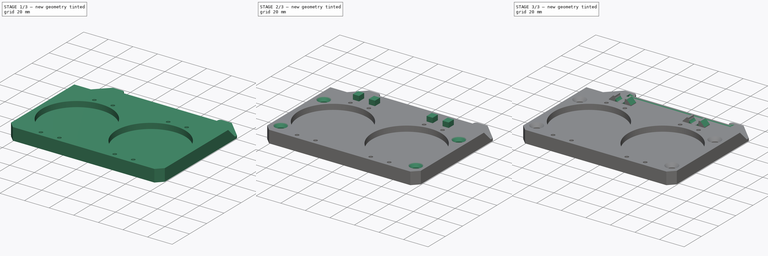
[diagram: build sequence overview — one tinted view per stage of 3, left to right]
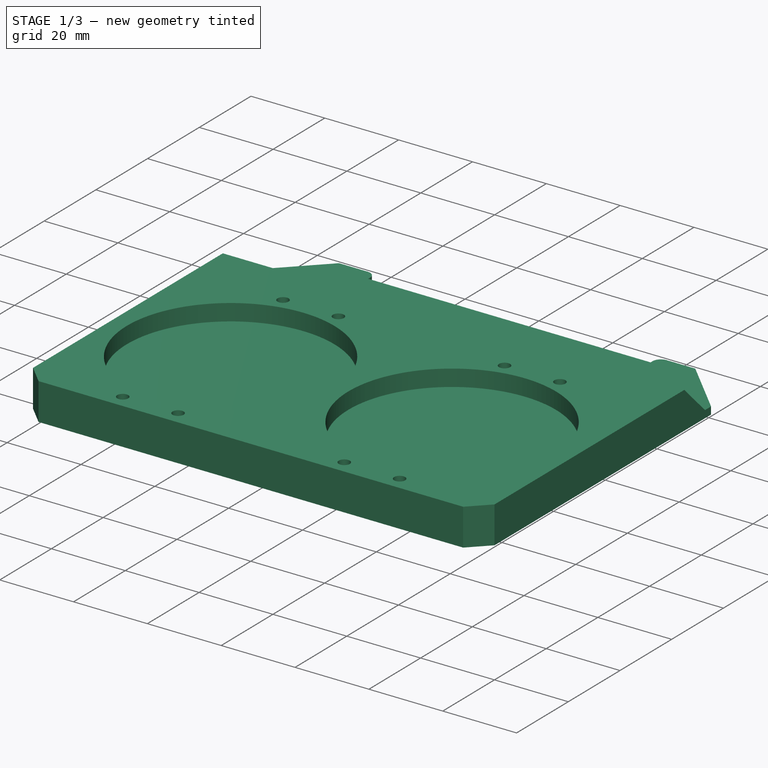
[diagram: stage 1 of 3 — iso view after this stage's code; geometry added in this stage tinted green]
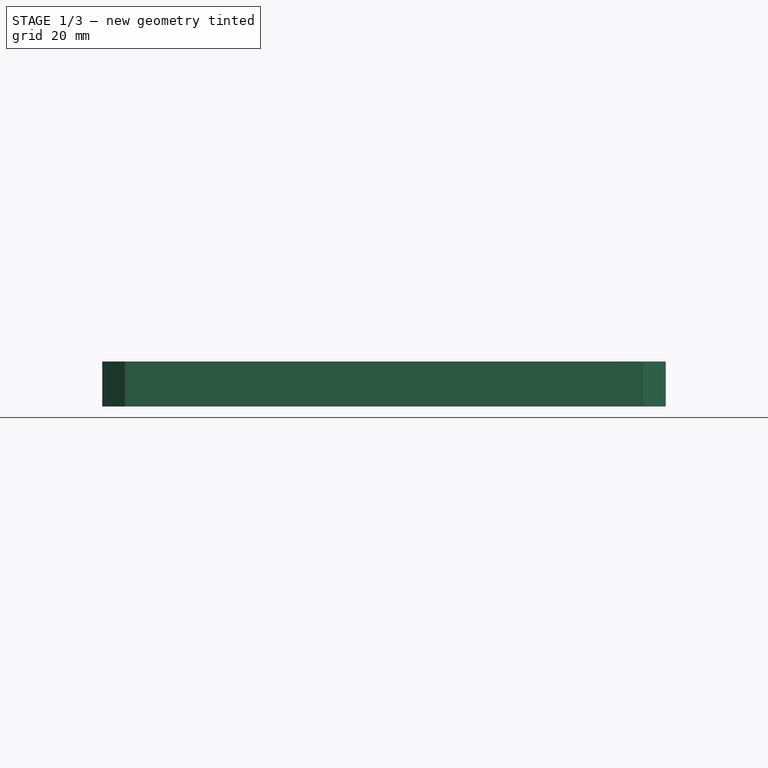
[diagram: stage 1 of 3 — front view after this stage's code; geometry added in this stage tinted green]
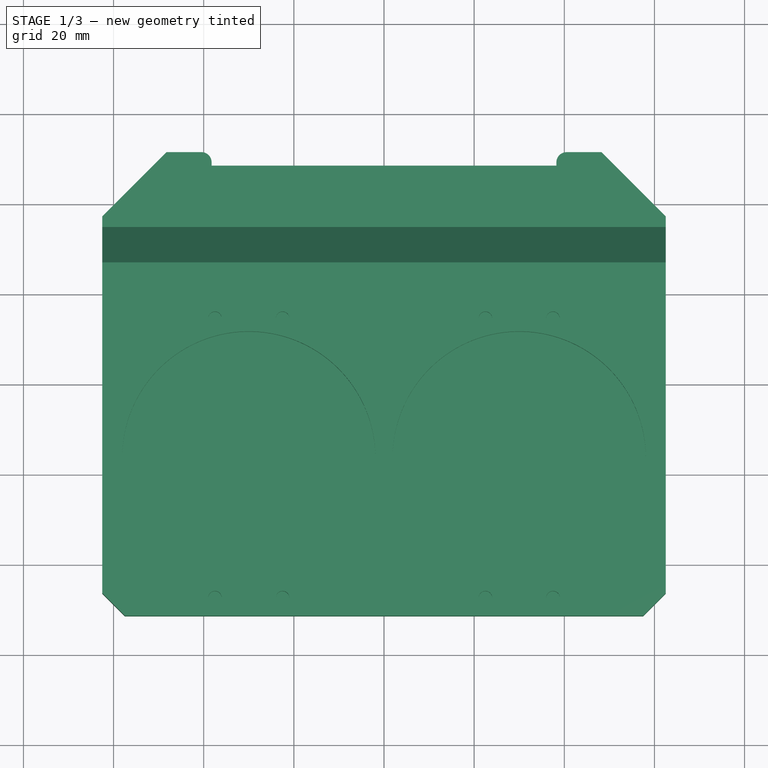
[diagram: stage 1 of 3 — top view after this stage's code; geometry added in this stage tinted green]
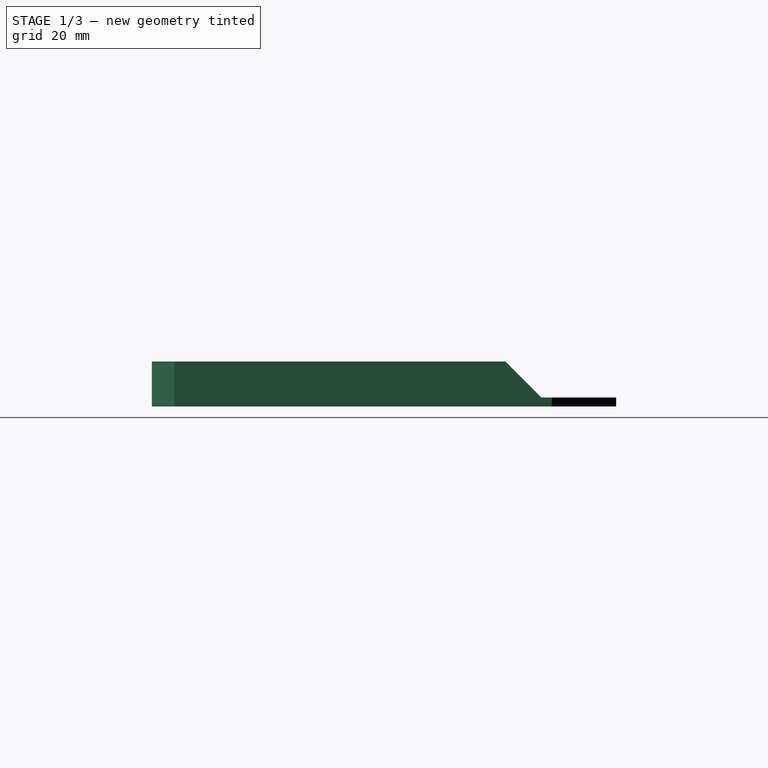
[diagram: stage 1 of 3 — right view after this stage's code; geometry added in this stage tinted green]
FCSTD DOCUMENT  (FreeCAD 0.19R24276 (Git))
Label: canvas_measurement_jig
License: All rights reserved
LicenseURL: http://en.wikipedia.org/wiki/All_rights_reserved
objects: Sketcher::SketchObject×6, PartDesign::Pocket×3, PartDesign::Pad×2, PartDesign::Hole×1, PartDesign::Chamfer×1, PartDesign::Fillet×1, PartDesign::Body×1
note: 23 computed .brp shape members not serialized (recipe doc carries the construction recipe); baked Part::Feature solids carry a one-line shape summary decoded from their .brp

FEATURE [Sketcher::SketchObject] Sketch
  FullyConstrained = true
  MapMode = 5
  Support = -> [XY_Plane]
  sketch-geometry (24):
    g0: LineSegment StartX=-48.25 StartY=-51.4 StartZ=0 EndX=48.25 EndY=-51.4 EndZ=0
    g1: LineSegment StartX=-48.25 StartY=-51.4 StartZ=0 EndX=0 EndY=0 EndZ=0
    g2: LineSegment StartX=0 StartY=0 StartZ=0 EndX=48.25 EndY=-51.4 EndZ=0
    g3: LineSegment StartX=-48.25 StartY=-48.4 StartZ=0 EndX=-40.5 EndY=-48.4 EndZ=0
    g4: LineSegment StartX=-38.25 StartY=-50.65 StartZ=0 EndX=-38.25 EndY=-51.4 EndZ=0
    g5: LineSegment StartX=-38.25 StartY=-51.4 StartZ=0 EndX=38.25 EndY=-51.4 EndZ=0
    g6: LineSegment StartX=38.25 StartY=-51.4 StartZ=0 EndX=38.25 EndY=-50.65 EndZ=0
    g7: LineSegment StartX=40.5 StartY=-48.4 StartZ=0 EndX=48.25 EndY=-48.4 EndZ=0
    g8: LineSegment StartX=-48.25 StartY=-48.4 StartZ=0 EndX=-48.25 EndY=-146.4 EndZ=0
    g9: LineSegment StartX=-48.25 StartY=-146.4 StartZ=0 EndX=48.25 EndY=-146.4 EndZ=0
    g10: LineSegment StartX=48.25 StartY=-146.4 StartZ=0 EndX=48.25 EndY=-48.4 EndZ=0
    g11: LineSegment StartX=-40.5 StartY=-48.4 StartZ=0 EndX=40.5 EndY=-48.4 EndZ=0
    g12: ArcOfCircle CenterX=-40.5 CenterY=-50.65 CenterZ=0 NormalX=0 NormalY=0 NormalZ=1 AngleXU=0 Radius=2.25 StartAngle=-9e-16 EndAngle=1.5708
    g13: ArcOfCircle CenterX=40.5 CenterY=-50.65 CenterZ=0 NormalX=0 NormalY=0 NormalZ=1 AngleXU=0 Radius=2.25 StartAngle=1.5708 EndAngle=3.14159
    g14: LineSegment StartX=48.25 StartY=-48.4 StartZ=0 EndX=62.5 EndY=-62.65 EndZ=0
    g15: LineSegment StartX=62.5 StartY=-62.65 StartZ=0 EndX=62.5 EndY=-146.4 EndZ=0
    g16: LineSegment StartX=62.5 StartY=-146.4 StartZ=0 EndX=-62.5 EndY=-146.4 EndZ=0
    g17: LineSegment StartX=-62.5 StartY=-146.4 StartZ=0 EndX=-62.5 EndY=-62.65 EndZ=0
    g18: LineSegment StartX=-62.5 StartY=-62.65 StartZ=0 EndX=-48.25 EndY=-48.4 EndZ=0
    g19: LineSegment StartX=-62.5 StartY=-62.65 StartZ=0 EndX=-62.5 EndY=-48.4 EndZ=0
    g20: LineSegment StartX=-62.5 StartY=-48.4 StartZ=0 EndX=-48.25 EndY=-48.4 EndZ=0
    g21: LineSegment StartX=-62.5 StartY=-146.4 StartZ=0 EndX=-57.5 EndY=-151.4 EndZ=0
    g22: LineSegment StartX=-57.5 StartY=-151.4 StartZ=0 EndX=57.5 EndY=-151.4 EndZ=0
    g23: LineSegment StartX=57.5 StartY=-151.4 StartZ=0 EndX=62.5 EndY=-146.4 EndZ=0
  constraints (65):
    c: Horizontal(g0)
    c: DistanceX(g0,g0) = 96.5
    c: Coincident(g0,g1)
    c: Coincident(g1,g-1)
    c: Coincident(g1,g2)
    c: Coincident(g2,g0)
    c: Equal(g2,g1)
    c: DistanceY(g0,g-1) = 51.4
    c: Horizontal(g3)
    c: PointOnObject(g4,g0)
    c: Vertical(g4)
    c: Coincident(g4,g5)
    c: PointOnObject(g5,g0)
    c: Coincident(g5,g6)
    c: Vertical(g6)
    c: Horizontal(g7)
    c: Equal(g7,g3)
    c: Coincident(g3,g8)
    c: Vertical(g8)
    c: Coincident(g8,g9)
    c: Horizontal(g9)
    c: Coincident(g9,g10)
    c: Coincident(g10,g7)
    c: Vertical(g10)
    c: PointOnObject(g0,g10)
    c: PointOnObject(g0,g8)
    c: DistanceY(g8,g4) = 95
    c: DistanceX(g5,g5) = 76.5
    c: Horizontal(g11)
    c: DistanceY(g0,g3) = 3
    c: Tangent(g4,g12) = 1.5708
    c: Tangent(g3,g12) = 1.5708
    c: Tangent(g6,g13) = 1.5708
    c: Tangent(g7,g13) = 1.5708
    c: Equal(g12,g13)
    c: Radius(g13) = 2.25
    c: Coincident(g11,g3)
    c: Coincident(g11,g7)
    c: Coincident(g7,g14)
    c: Coincident(g14,g15)
    c: Vertical(g15)
    c: Coincident(g15,g16)
    c: Horizontal(g16)
    c: Coincident(g16,g17)
    c: Vertical(g17)
    c: Coincident(g18,g17)
    c: Coincident(g18,g3)
    c: PointOnObject(g8,g16)
    c: Equal(g17,g15)
    c: Equal(g14,g18)
    c: Coincident(g17,g19)
    c: Vertical(g19)
    c: Coincident(g19,g20)
    c: Coincident(g20,g3)
    c: Horizontal(g20)
    c: Equal(g20,g19)
    c: DistanceX(g16,g16) = 125
    c: Coincident(g17,g21)
    c: Coincident(g21,g22)
    c: Horizontal(g22)
    c: Coincident(g22,g23)
    c: Coincident(g23,g15)
    c: Parallel(g23,g18)
    c: Parallel(g21,g14)
    c: DistanceY(g21,g0) = 100
FEATURE [PartDesign::Pad] Pad
  Direction = (1,1,1)
  Length = 10
  Length2 = 100
  Profile = -> Sketch
  Type = 0
FEATURE [Sketcher::SketchObject] Sketch001
  AttachmentOffset = pos=(0,0,10) rot=(0,0,1;0rad)
  FullyConstrained = true
  MapMode = 5
  Placement = pos=(0,0,10) rot=(0,0,1;0rad)
  Support = -> [XY_Plane]
  sketch-geometry (28):
    g0: Circle CenterX=-30 CenterY=-116.4 CenterZ=0 NormalX=0 NormalY=0 NormalZ=1 AngleXU=0 Radius=28.1
    g1: Circle CenterX=30 CenterY=-116.4 CenterZ=0 NormalX=0 NormalY=0 NormalZ=1 AngleXU=0 Radius=28.1
    g2: LineSegment StartX=-30 StartY=-116.4 StartZ=0 EndX=30 EndY=-116.4 EndZ=0
    g3: LineSegment StartX=-30 StartY=-116.4 StartZ=0 EndX=0 EndY=0 EndZ=0
    g4: LineSegment StartX=0 StartY=0 StartZ=0 EndX=30 EndY=-116.4 EndZ=0
    g5: LineSegment StartX=0 StartY=0 StartZ=0 EndX=0 EndY=-51.4 EndZ=0
    g6: Circle CenterX=-37.5 CenterY=-85.4 CenterZ=0 NormalX=0 NormalY=0 NormalZ=1 AngleXU=0 Radius=1.5
    g7: Circle CenterX=-22.5 CenterY=-85.4 CenterZ=0 NormalX=0 NormalY=0 NormalZ=1 AngleXU=0 Radius=1.5
    g8: Circle CenterX=22.5 CenterY=-85.4 CenterZ=0 NormalX=0 NormalY=0 NormalZ=1 AngleXU=0 Radius=1.5
    g9: Circle CenterX=37.5 CenterY=-85.4 CenterZ=0 NormalX=0 NormalY=0 NormalZ=1 AngleXU=0 Radius=1.5
    g10: Circle CenterX=-37.5 CenterY=-147.4 CenterZ=0 NormalX=0 NormalY=0 NormalZ=1 AngleXU=0 Radius=1.5
    g11: Circle CenterX=-22.5 CenterY=-147.4 CenterZ=0 NormalX=0 NormalY=0 NormalZ=1 AngleXU=0 Radius=1.5
    g12: Circle CenterX=22.5 CenterY=-147.4 CenterZ=0 NormalX=0 NormalY=0 NormalZ=1 AngleXU=0 Radius=1.5
    g13: Circle CenterX=37.5 CenterY=-147.4 CenterZ=0 NormalX=0 NormalY=0 NormalZ=1 AngleXU=0 Radius=1.5
    g14: LineSegment StartX=22.5 StartY=-85.4 StartZ=0 EndX=37.5 EndY=-85.4 EndZ=0
    g15: LineSegment StartX=37.5 StartY=-85.4 StartZ=0 EndX=37.5 EndY=-147.4 EndZ=0
    g16: LineSegment StartX=37.5 StartY=-147.4 StartZ=0 EndX=22.5 EndY=-147.4 EndZ=0
    g17: LineSegment StartX=22.5 StartY=-147.4 StartZ=0 EndX=22.5 EndY=-85.4 EndZ=0
    g18: LineSegment StartX=-37.5 StartY=-85.4 StartZ=0 EndX=-22.5 EndY=-85.4 EndZ=0
    g19: LineSegment StartX=-22.5 StartY=-85.4 StartZ=0 EndX=-22.5 EndY=-147.4 EndZ=0
    g20: LineSegment StartX=-22.5 StartY=-147.4 StartZ=0 EndX=-37.5 EndY=-147.4 EndZ=0
    g21: LineSegment StartX=-37.5 StartY=-147.4 StartZ=0 EndX=-37.5 EndY=-85.4 EndZ=0
    g22: LineSegment StartX=-37.5 StartY=-85.4 StartZ=0 EndX=-30 EndY=-116.4 EndZ=0
    g23: LineSegment StartX=-30 StartY=-116.4 StartZ=0 EndX=-22.5 EndY=-85.4 EndZ=0
    g24: LineSegment StartX=22.5 StartY=-85.4 StartZ=0 EndX=30 EndY=-116.4 EndZ=0
    g25: LineSegment StartX=30 StartY=-116.4 StartZ=0 EndX=37.5 EndY=-85.4 EndZ=0
    g26: LineSegment StartX=30 StartY=-116.4 StartZ=0 EndX=37.5 EndY=-147.4 EndZ=0
    g27: LineSegment StartX=-30 StartY=-116.4 StartZ=0 EndX=-37.5 EndY=-147.4 EndZ=0
  constraints (67):
    c: Diameter(g0) = 56.2
    c: Equal(g0,g1)
    c: Coincident(g2,g0)
    c: Coincident(g2,g1)
    c: Horizontal(g2)
    c: Coincident(g3,g0)
    c: Coincident(g3,g-1)
    c: Coincident(g3,g4)
    c: Coincident(g4,g1)
    c: Equal(g4,g3)
    c: Coincident(g5,g-1)
    c: Vertical(g5)
    c: DistanceY(g0,g5) = 65
    c: DistanceY(g5,g5) = 51.4
    c: DistanceX(g2,g2) = 60
    c: Diameter(g12) = 3
    c: Equal(g12,g13)
    c: Equal(g12,g9)
    c: Equal(g12,g8)
    c: Equal(g12,g7)
    c: Equal(g12,g6)
    c: Equal(g12,g10)
    c: Equal(g12,g11)
    c: Coincident(g14,g15)
    c: Coincident(g15,g16)
    c: Coincident(g16,g17)
    c: Coincident(g17,g14)
    c: Horizontal(g14)
    c: Horizontal(g16)
    c: Vertical(g15)
    c: Vertical(g17)
    c: Coincident(g14,g8)
    c: Coincident(g15,g13)
    c: Coincident(g18,g19)
    c: Coincident(g19,g20)
    c: Coincident(g20,g21)
    c: Coincident(g21,g18)
    c: Horizontal(g18)
    c: Horizontal(g20)
    c: Vertical(g19)
    c: Vertical(g21)
    c: Coincident(g18,g6)
    c: Coincident(g19,g11)
    c: Coincident(g7,g18)
    c: Coincident(g10,g20)
    c: Coincident(g9,g14)
    c: Coincident(g12,g16)
    c: Coincident(g22,g6)
    c: Coincident(g22,g0)
    c: Coincident(g22,g23)
    c: Coincident(g23,g7)
    c: Coincident(g24,g8)
    c: Coincident(g24,g1)
    c: Coincident(g24,g25)
    c: Coincident(g25,g9)
    c: Coincident(g26,g1)
    c: Coincident(g26,g13)
    c: Coincident(g27,g0)
    c: Coincident(g27,g10)
    c: Equal(g27,g22)
    c: Equal(g22,g23)
    c: Equal(g23,g24)
    c: Equal(g24,g25)
    c: Equal(g25,g26)
    c: DistanceX(g18,g18) = 15
    c: DistanceY(g21,g21) = 62
    c: Equal(g17,g19)
FEATURE [PartDesign::Pocket] Pocket
  BaseFeature = -> Pad
  Length = 4.5
  Length2 = 100
  Profile = -> Sketch001
  Type = 0
FEATURE [Sketcher::SketchObject] Sketch002
  FullyConstrained = true
  MapMode = 5
  Placement = pos=(0,0,0) rot=(0.57735,0.57735,0.57735;2.0944rad)
  Support = -> [YZ_Plane]
  sketch-geometry (4):
    g0: LineSegment StartX=0 StartY=2 StartZ=0 EndX=-65 EndY=2 EndZ=0
    g1: LineSegment StartX=-65 StartY=2 StartZ=0 EndX=-85 EndY=22 EndZ=0
    g2: LineSegment StartX=-85 StartY=22 StartZ=0 EndX=0 EndY=22 EndZ=0
    g3: LineSegment StartX=0 StartY=22 StartZ=0 EndX=0 EndY=2 EndZ=0
  constraints (12):
    c: Horizontal(g0)
    c: Coincident(g0,g1)
    c: Coincident(g1,g2)
    c: Horizontal(g2)
    c: Coincident(g2,g3)
    c: Vertical(g3)
    c: Coincident(g3,g0)
    c: Angle(g1,g2) = 0.785398
    c: DistanceY(g-1,g0) = 2
    c: PointOnObject(g0,g-2)
    c: DistanceX(g0,g0) = 65
    c: DistanceY(g3,g3) = 20
FEATURE [PartDesign::Pocket] Pocket001
  BaseFeature = -> Pocket
  Length = 5
  Length2 = 100
  Midplane = true
  Profile = -> Sketch002
  Type = 1
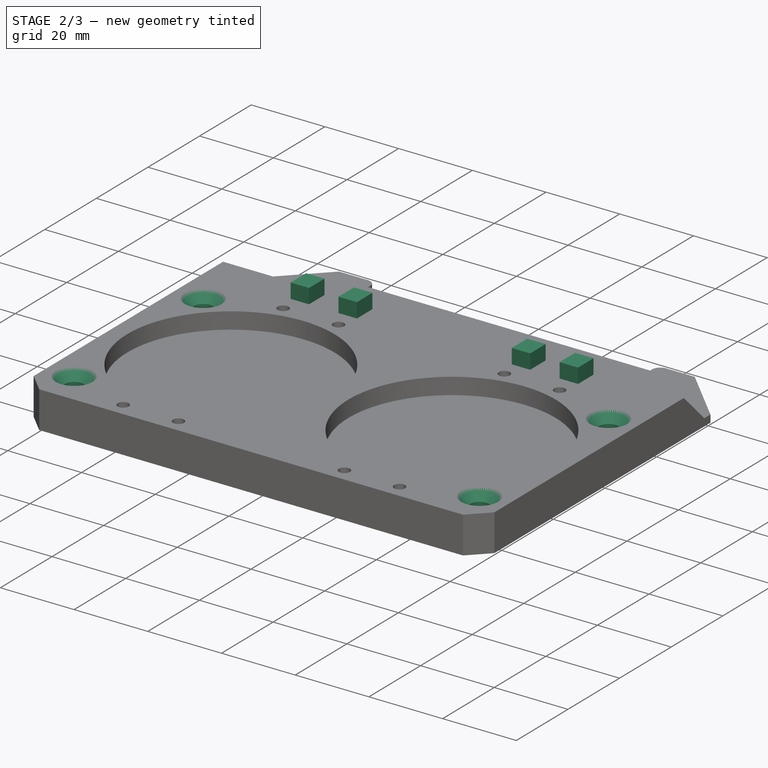
[diagram: stage 2 of 3 — iso view after this stage's code; geometry added in this stage tinted green]
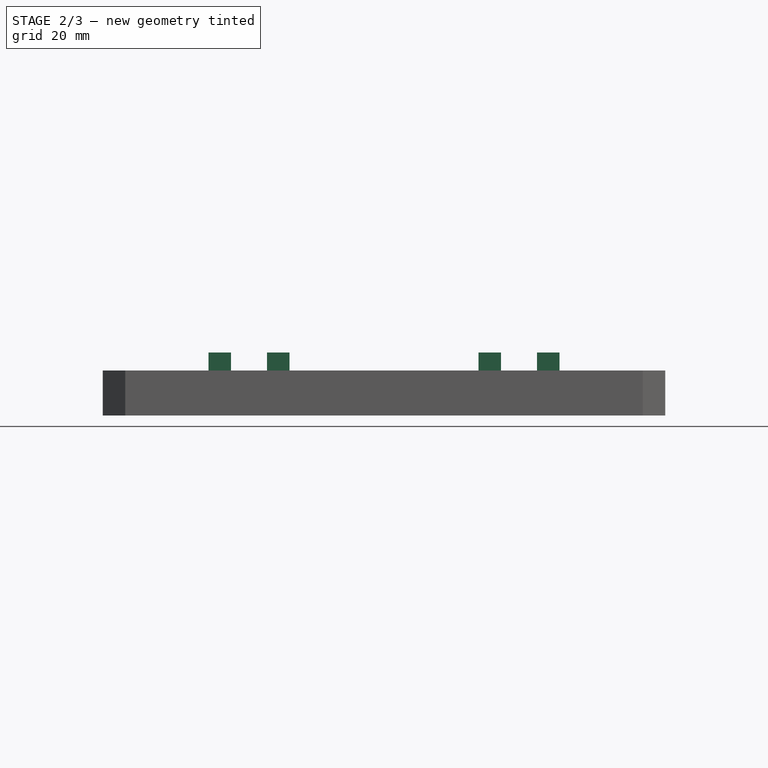
[diagram: stage 2 of 3 — front view after this stage's code; geometry added in this stage tinted green]
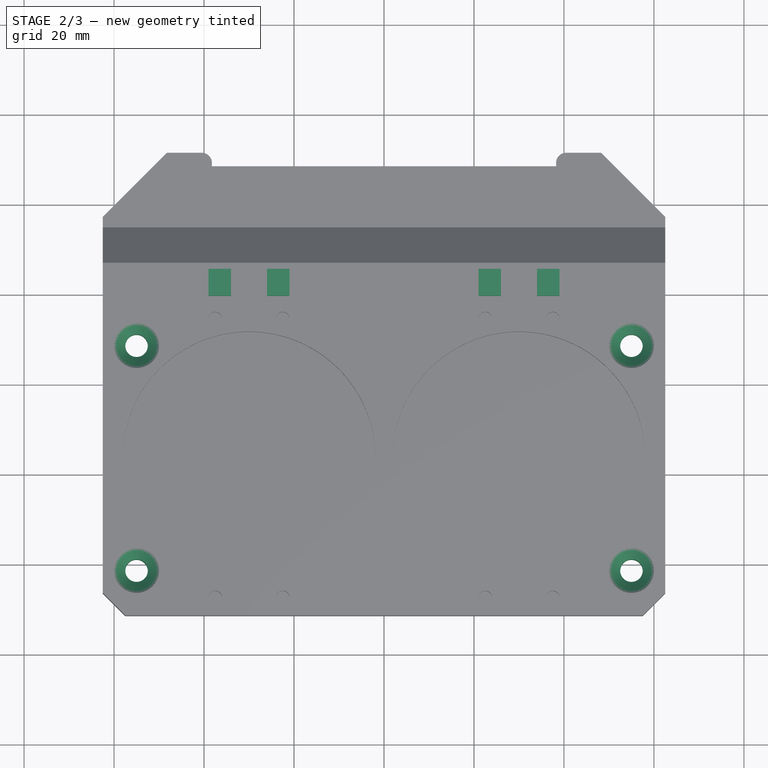
[diagram: stage 2 of 3 — top view after this stage's code; geometry added in this stage tinted green]
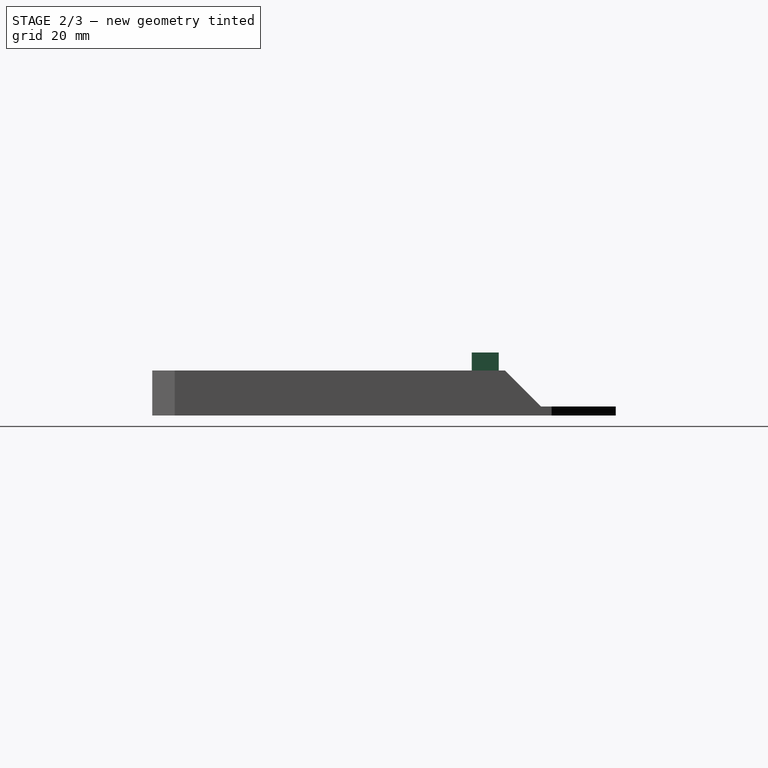
[diagram: stage 2 of 3 — right view after this stage's code; geometry added in this stage tinted green]
FEATURE [Sketcher::SketchObject] Sketch003
  AttachmentOffset = pos=(0,0,10) rot=(0,0,1;0rad)
  FullyConstrained = true
  MapMode = 5
  Placement = pos=(0,0,10) rot=(0,0,1;0rad)
  Support = -> [XY_Plane]
  sketch-geometry (11):
    g0: Circle CenterX=-55 CenterY=-91.4 CenterZ=0 NormalX=0 NormalY=0 NormalZ=1 AngleXU=0 Radius=2.5
    g1: Circle CenterX=55 CenterY=-91.4 CenterZ=0 NormalX=0 NormalY=0 NormalZ=1 AngleXU=0 Radius=2.5
    g2: Circle CenterX=55 CenterY=-141.4 CenterZ=0 NormalX=0 NormalY=0 NormalZ=1 AngleXU=0 Radius=2.5
    g3: Circle CenterX=-55 CenterY=-141.4 CenterZ=0 NormalX=0 NormalY=0 NormalZ=1 AngleXU=0 Radius=2.5
    g4: LineSegment StartX=-55 StartY=-91.4 StartZ=0 EndX=55 EndY=-91.4 EndZ=0
    g5: LineSegment StartX=55 StartY=-91.4 StartZ=0 EndX=55 EndY=-141.4 EndZ=0
    g6: LineSegment StartX=55 StartY=-141.4 StartZ=0 EndX=-55 EndY=-141.4 EndZ=0
    g7: LineSegment StartX=-55 StartY=-141.4 StartZ=0 EndX=-55 EndY=-91.4 EndZ=0
    g8: LineSegment StartX=-55 StartY=-91.4 StartZ=0 EndX=0 EndY=-116.4 EndZ=0
    g9: LineSegment StartX=0 StartY=-116.4 StartZ=0 EndX=55 EndY=-91.4 EndZ=0
    g10: LineSegment StartX=55 StartY=-141.4 StartZ=0 EndX=0 EndY=-116.4 EndZ=0
  constraints (27):
    c: Coincident(g4,g5)
    c: Coincident(g5,g6)
    c: Coincident(g6,g7)
    c: Coincident(g7,g4)
    c: Horizontal(g4)
    c: Horizontal(g6)
    c: Vertical(g5)
    c: Vertical(g7)
    c: Coincident(g4,g0)
    c: Coincident(g5,g2)
    c: Coincident(g1,g4)
    c: Coincident(g6,g3)
    c: Coincident(g8,g0)
    c: PointOnObject(g8,g-2)
    c: Coincident(g8,g9)
    c: Coincident(g9,g1)
    c: Coincident(g10,g2)
    c: Coincident(g10,g8)
    c: Equal(g8,g9)
    c: Equal(g9,g10)
    c: DistanceY(g8,g-1) = 116.4
    c: Diameter(g0) = 5
    c: Equal(g0,g3)
    c: Equal(g0,g1)
    c: Equal(g0,g2)
    c: DistanceX(g4,g4) = 110
    c: DistanceY(g7,g7) = 50
FEATURE [PartDesign::Hole] Hole
  BaseFeature = -> Pocket001
  Depth = 25
  DepthType = 0
  Diameter = 5
  DrillForDepth = false
  DrillPoint = 1
  DrillPointAngle = 118
  HoleCutCountersinkAngle = 90
  HoleCutCustomValues = false
  HoleCutDepth = 0
  HoleCutDiameter = 10
  HoleCutType = 2
  ModelActualThread = false
  Profile = -> Sketch003
  Tapered = false
  TaperedAngle = 90
  ThreadAngle = 0
  ThreadClass = 0
  ThreadCutOffInner = 0
  ThreadCutOffOuter = 0
  ThreadDirection = 0
  ThreadFit = 0
  ThreadPitch = 0
  ThreadSize = 0
  ThreadType = 0
  Threaded = false
FEATURE [Sketcher::SketchObject] Sketch005
  ExternalGeometry = -> [Hole]
  FullyConstrained = true
  MapMode = 5
  Placement = pos=(0,0,10) rot=(0,0,1;0rad)
  Support = -> [Hole]
  sketch-geometry (23):
    g0: LineSegment StartX=-39 StartY=-74.4 StartZ=0 EndX=-34 EndY=-74.4 EndZ=0
    g1: LineSegment StartX=-34 StartY=-74.4 StartZ=0 EndX=-34 EndY=-80.4 EndZ=0
    g2: LineSegment StartX=-34 StartY=-80.4 StartZ=0 EndX=-39 EndY=-80.4 EndZ=0
    g3: LineSegment StartX=-39 StartY=-80.4 StartZ=0 EndX=-39 EndY=-74.4 EndZ=0
    g4: LineSegment StartX=-26 StartY=-74.4 StartZ=0 EndX=-21 EndY=-74.4 EndZ=0
    g5: LineSegment StartX=-21 StartY=-74.4 StartZ=0 EndX=-21 EndY=-80.4 EndZ=0
    g6: LineSegment StartX=-21 StartY=-80.4 StartZ=0 EndX=-26 EndY=-80.4 EndZ=0
    g7: LineSegment StartX=-26 StartY=-80.4 StartZ=0 EndX=-26 EndY=-74.4 EndZ=0
    g8: LineSegment StartX=21 StartY=-74.4 StartZ=0 EndX=26 EndY=-74.4 EndZ=0
    g9: LineSegment StartX=26 StartY=-74.4 StartZ=0 EndX=26 EndY=-80.4 EndZ=0
    g10: LineSegment StartX=26 StartY=-80.4 StartZ=0 EndX=21 EndY=-80.4 EndZ=0
    g11: LineSegment StartX=21 StartY=-80.4 StartZ=0 EndX=21 EndY=-74.4 EndZ=0
    g12: LineSegment StartX=34 StartY=-74.4 StartZ=0 EndX=39 EndY=-74.4 EndZ=0
    g13: LineSegment StartX=39 StartY=-74.4 StartZ=0 EndX=39 EndY=-80.4 EndZ=0
    g14: LineSegment StartX=39 StartY=-80.4 StartZ=0 EndX=34 EndY=-80.4 EndZ=0
    g15: LineSegment StartX=34 StartY=-80.4 StartZ=0 EndX=34 EndY=-74.4 EndZ=0
    g16: LineSegment StartX=-34 StartY=-80.4 StartZ=0 EndX=-30 EndY=-116.4 EndZ=0
    g17: LineSegment StartX=-30 StartY=-116.4 StartZ=0 EndX=-26 EndY=-80.4 EndZ=0
    g18: LineSegment StartX=-34 StartY=-80.4 StartZ=0 EndX=-26 EndY=-80.4 EndZ=0
    g19: LineSegment StartX=26 StartY=-80.4 StartZ=0 EndX=34 EndY=-80.4 EndZ=0
    g20: LineSegment StartX=26 StartY=-80.4 StartZ=0 EndX=30 EndY=-116.4 EndZ=0
    g21: LineSegment StartX=30 StartY=-116.4 StartZ=0 EndX=34 EndY=-80.4 EndZ=0
    g22: LineSegment StartX=21 StartY=-80.4 StartZ=0 EndX=-21 EndY=-80.4 EndZ=0
  constraints (62):
    c: Coincident(g0,g1)
    c: Coincident(g1,g2)
    c: Coincident(g2,g3)
    c: Coincident(g3,g0)
    c: Horizontal(g0)
    c: Horizontal(g2)
    c: Vertical(g1)
    c: Vertical(g3)
    c: Coincident(g4,g5)
    c: Coincident(g5,g6)
    c: Coincident(g6,g7)
    c: Coincident(g7,g4)
    c: Horizontal(g4)
    c: Horizontal(g6)
    c: Vertical(g5)
    c: Vertical(g7)
    c: Coincident(g8,g9)
    c: Coincident(g9,g10)
    c: Coincident(g10,g11)
    c: Coincident(g11,g8)
    c: Horizontal(g8)
    c: Horizontal(g10)
    c: Vertical(g9)
    c: Vertical(g11)
    c: Coincident(g12,g13)
    c: Coincident(g13,g14)
    c: Coincident(g14,g15)
    c: Coincident(g15,g12)
    c: Horizontal(g12)
    c: Horizontal(g14)
    c: Vertical(g13)
    c: Vertical(g15)
    c: Coincident(g1,g16)
    c: Coincident(g16,g-3)
    c: Coincident(g16,g17)
    c: Coincident(g17,g6)
    c: Equal(g2,g6)
    c: Equal(g6,g10)
    c: Equal(g10,g14)
    c: Equal(g15,g9)
    c: Equal(g9,g1)
    c: Equal(g1,g7)
    c: Coincident(g18,g1)
    c: Coincident(g18,g6)
    c: Horizontal(g18)
    c: Coincident(g19,g9)
    c: Coincident(g19,g14)
    c: Horizontal(g19)
    c: Coincident(g9,g20)
    c: Coincident(g20,g-4)
    c: Coincident(g20,g21)
    c: Coincident(g21,g14)
    c: Coincident(g10,g22)
    c: Coincident(g22,g5)
    c: Horizontal(g22)
    c: Equal(g16,g17)
    c: Equal(g17,g20)
    c: Equal(g20,g21)
    c: DistanceX(g18,g18) = 8
    c: DistanceX(g0,g0) = 5
    c: DistanceY(g16,g0) = 42
    c: DistanceY(g3,g3) = 6
FEATURE [PartDesign::Pad] Pad001
  BaseFeature = -> Hole
  Direction = (1,1,1)
  Length = 4
  Length2 = 100
  Profile = -> Sketch005
  Type = 0
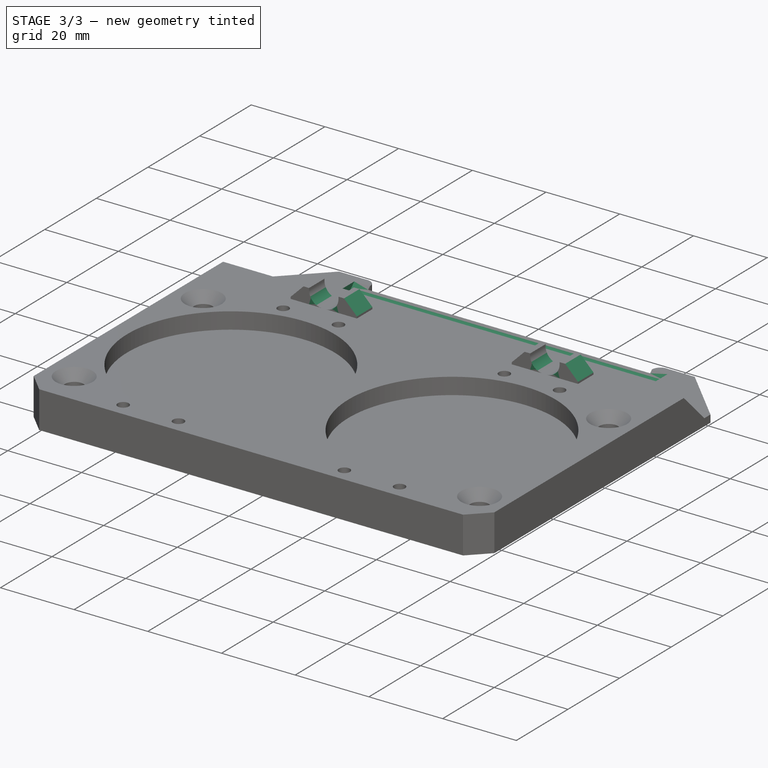
[diagram: stage 3 of 3 — iso view after this stage's code; geometry added in this stage tinted green]
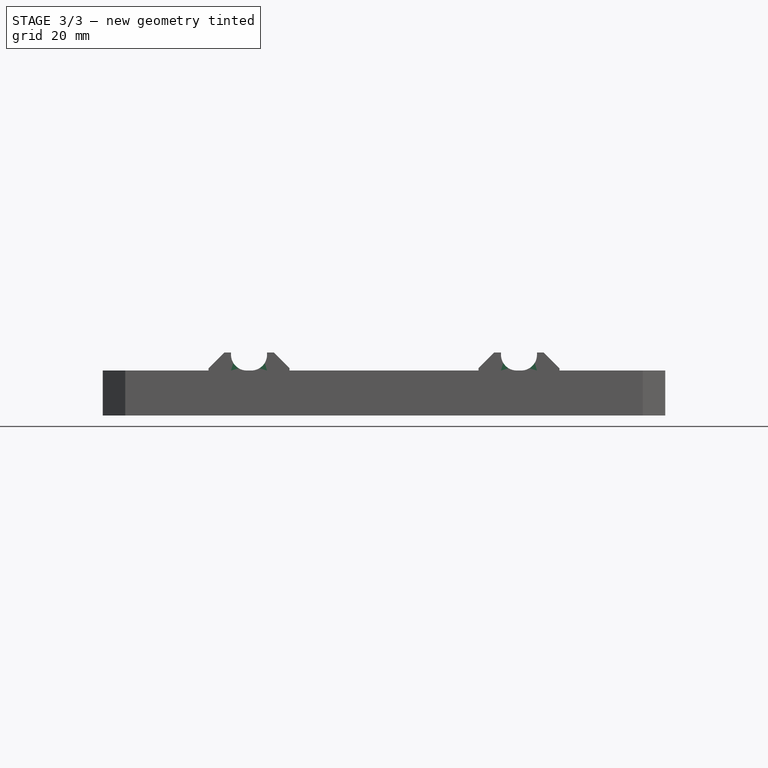
[diagram: stage 3 of 3 — front view after this stage's code; geometry added in this stage tinted green]
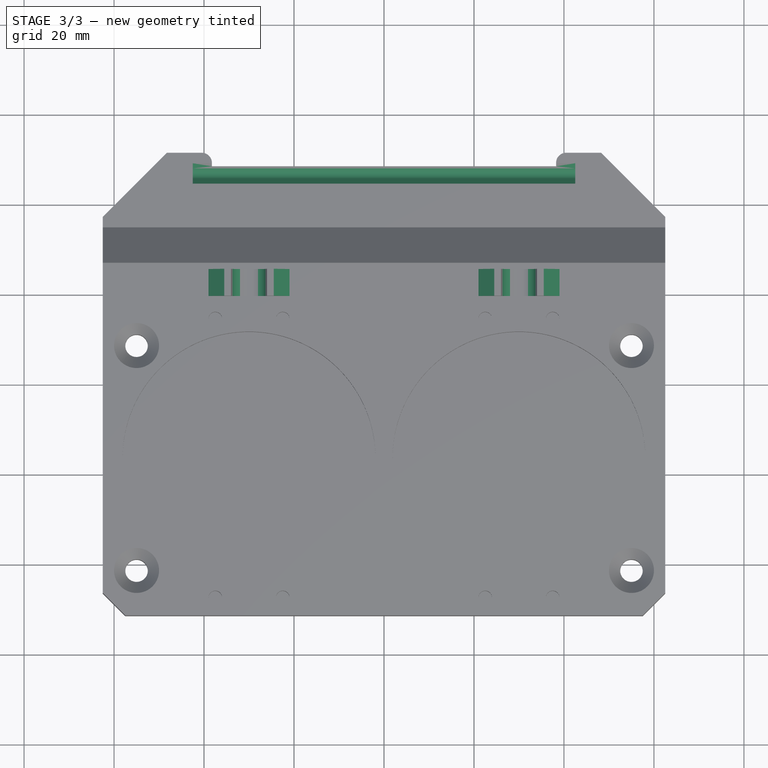
[diagram: stage 3 of 3 — top view after this stage's code; geometry added in this stage tinted green]
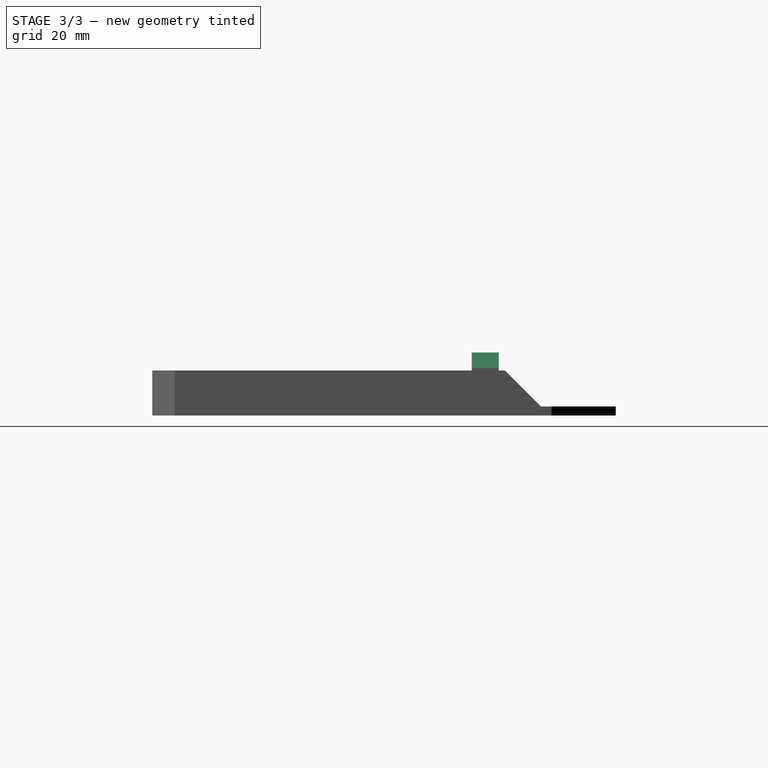
[diagram: stage 3 of 3 — right view after this stage's code; geometry added in this stage tinted green]
FEATURE [Sketcher::SketchObject] Sketch006
  FullyConstrained = true
  MapMode = 5
  Placement = pos=(0,0,0) rot=(0.57735,0.57735,0.57735;2.0944rad)
  Support = -> [YZ_Plane]
  sketch-geometry (4):
    g0: ArcOfCircle CenterX=-53 CenterY=2 CenterZ=0 NormalX=0 NormalY=0 NormalZ=1 AngleXU=0 Radius=1.6 StartAngle=3.92699 EndAngle=5.49779
    g1: LineSegment StartX=-54.1314 StartY=0.868629 StartZ=0 EndX=-68.2627 EndY=15 EndZ=0
    g2: LineSegment StartX=-68.2627 StartY=15 StartZ=0 EndX=-37.7373 EndY=15 EndZ=0
    g3: LineSegment StartX=-51.8686 StartY=0.868629 StartZ=0 EndX=-37.7373 EndY=15 EndZ=0
  constraints (11):
    c: Tangent(g0,g1) = 1.5708
    c: Coincident(g1,g2)
    c: Horizontal(g2)
    c: Tangent(g0,g3) = -1.5708
    c: Coincident(g3,g2)
    c: Diameter(g0) = 3.2
    c: DistanceY(g-1,g0) = 2
    c: DistanceX(g0,g-1) = 53
    c: Angle(g1,g2) = 0.785398
    c: DistanceY(g-1,g2) = 15
    c: Perpendicular(g1,g3)
FEATURE [PartDesign::Pocket] Pocket002
  BaseFeature = -> Pad001
  Length = 85
  Length2 = 100
  Midplane = true
  Profile = -> Sketch006
  Type = 0
FEATURE [PartDesign::Chamfer] Chamfer
  Angle = 45
  Base = -> Pocket002 [Edge127,Edge140,Edge147,Edge161]
  BaseFeature = -> Pocket002
  ChamferType = 0
  FlipDirection = false
  Size = 3.5
  Size2 = 1
  SupportTransform = false
FEATURE [PartDesign::Fillet] Fillet
  Base = -> Chamfer [Edge42,Edge31,Edge38,Edge28]
  BaseFeature = -> Chamfer
  Radius = 3.5
  SupportTransform = false
FEATURE [PartDesign::Body] Body
  Group = -> [Sketch,Pad,Sketch001,Pocket,Sketch002,Pocket001,Sketch003,Hole,Sketch005,Pad001,Sketch006,Pocket002,Chamfer,Fillet]
  Origin = -> Origin
  Tip = -> Fillet
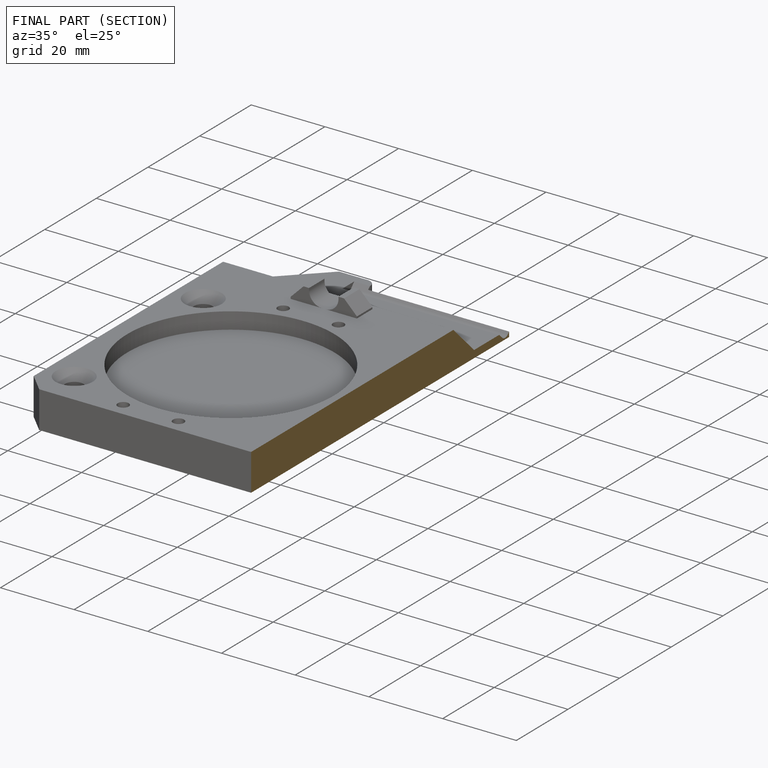
[diagram: finished part — half-section view (interior)]
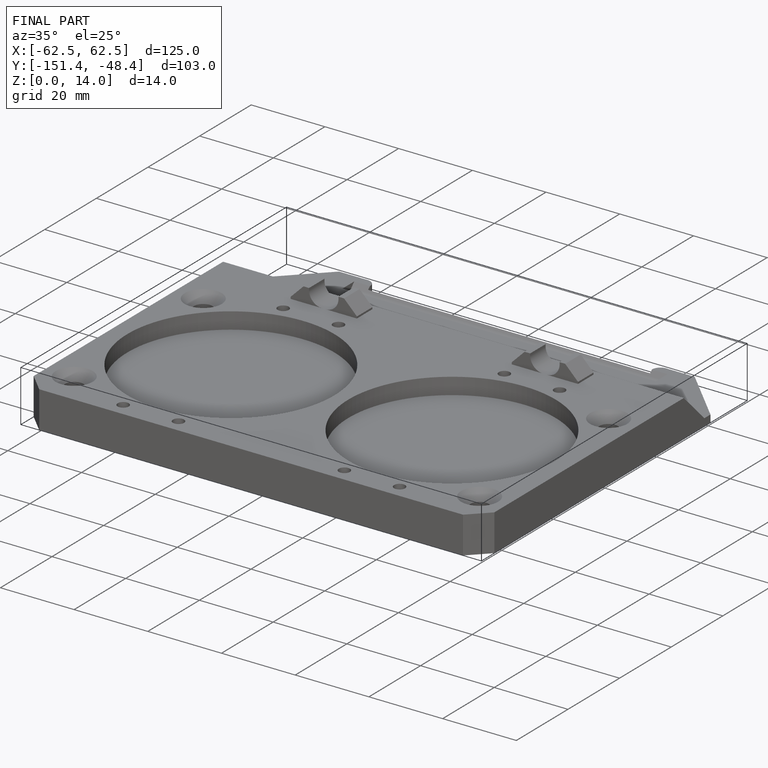
[diagram: finished part — iso view with bounding-box wireframe]
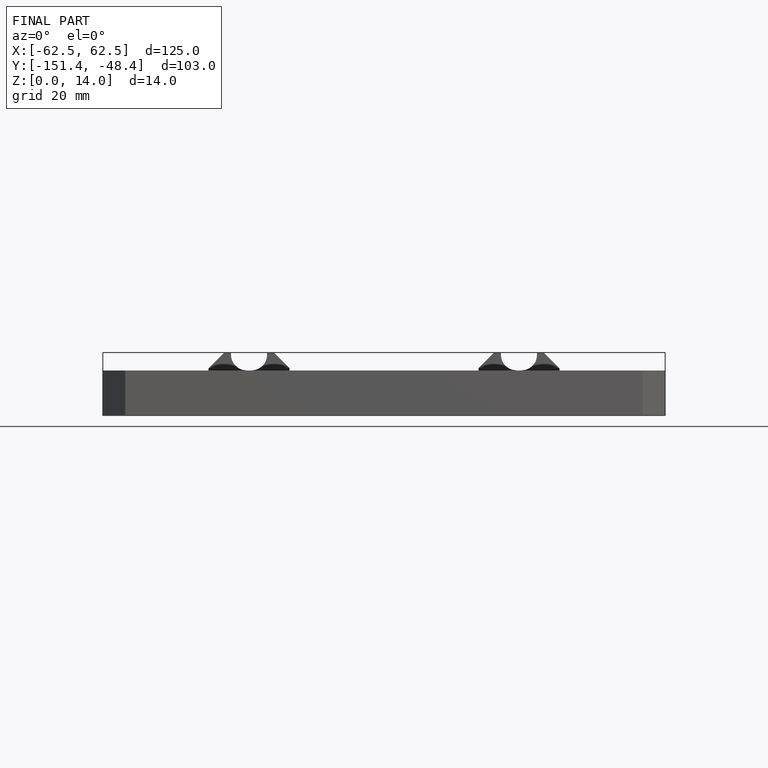
[diagram: finished part — front view with bounding-box wireframe]
